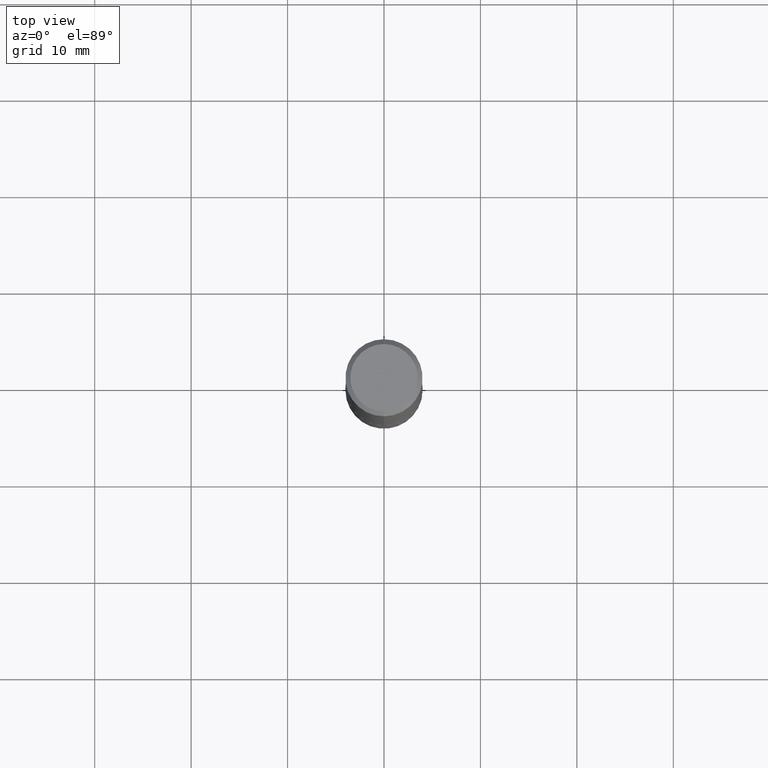
[diagram: clean part render]
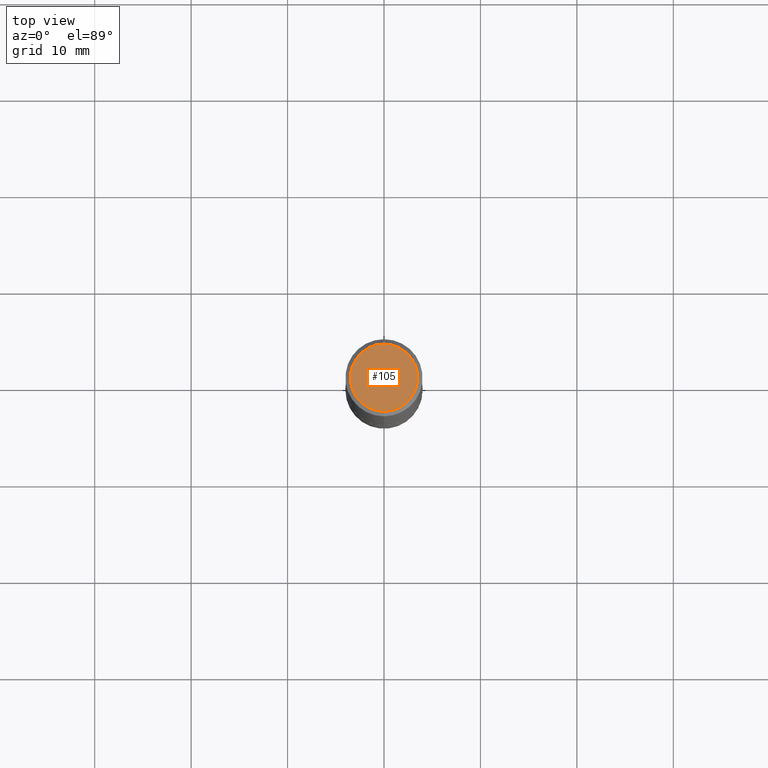
[diagram: same view with one face highlighted and labeled with its STEP entity id]
A machine part, top view. The second image highlights one B-rep face of the part: STEP entity #105.
In plain terms, the highlighted planar face has unit normal (0, -0, -1).
Its self-contained STEP definition (entity closure, byte-faithful):
#14 = DIRECTION ( 'NONE',  ( -2.444928043019069804E-29, 3.492255742475281487E-15, 1.000000000000000000 ) ) ;
#50 = DIRECTION ( 'NONE',  ( -6.982962677686265922E-15, -1.000000000000000000, 3.492255742475281487E-15 ) ) ;
#74 = PLANE ( 'NONE',  #129 ) ;
#105 = ADVANCED_FACE ( 'NONE', ( #370 ), #74, .F. ) ;
#122 = CARTESIAN_POINT ( 'NONE',  ( -1.011923454671300053E-15, -0.1374999999999997891, 6.809117321244884418E-16 ) ) ;
#129 = AXIS2_PLACEMENT_3D ( 'NONE', #377, #214, #249 ) ;
#139 = AXIS2_PLACEMENT_3D ( 'NONE', #171, #314, #281 ) ;
#171 = CARTESIAN_POINT ( 'NONE',  ( -4.907620139431751550E-45, 7.009885081384458012E-31, 2.007265675341379917E-16 ) ) ;
#208 = CIRCLE ( 'NONE', #283, 0.1374999999999997891 ) ;
#214 = DIRECTION ( 'NONE',  ( 2.444928043019069243E-29, -3.492255742475281487E-15, -1.000000000000000000 ) ) ;
#246 = VERTEX_POINT ( 'NONE', #122 ) ;
#249 = DIRECTION ( 'NONE',  ( 6.982962677686265922E-15, 1.000000000000000000, -3.492255742475281487E-15 ) ) ;
#258 = VERTEX_POINT ( 'NONE', #375 ) ;
#275 = CARTESIAN_POINT ( 'NONE',  ( -4.907620139431751550E-45, 7.009885081384458012E-31, 2.007265675341379917E-16 ) ) ;
#281 = DIRECTION ( 'NONE',  ( -6.982962677686265922E-15, -1.000000000000000000, 3.492255742475281487E-15 ) ) ;
#283 = AXIS2_PLACEMENT_3D ( 'NONE', #275, #14, #50 ) ;
#293 = ORIENTED_EDGE ( 'NONE', *, *, #308, .T. ) ;
#294 = EDGE_LOOP ( 'NONE', ( #334, #293 ) ) ;
#308 = EDGE_CURVE ( 'NONE', #246, #258, #333, .T. ) ;
#314 = DIRECTION ( 'NONE',  ( -2.444928043019069804E-29, 3.492255742475281487E-15, 1.000000000000000000 ) ) ;
#333 = CIRCLE ( 'NONE', #139, 0.1374999999999997891 ) ;
#334 = ORIENTED_EDGE ( 'NONE', *, *, #407, .T. ) ;
#370 = FACE_OUTER_BOUND ( 'NONE', #294, .T. ) ;
#375 = CARTESIAN_POINT ( 'NONE',  ( 1.029986994958723788E-15, 0.1374999999999997891, -2.794585970562124091E-16 ) ) ;
#377 = CARTESIAN_POINT ( 'NONE',  ( 9.601573681818600950E-16, 0.1374999999999997891, -3.798218808232814543E-16 ) ) ;
#407 = EDGE_CURVE ( 'NONE', #258, #246, #208, .T. ) ;